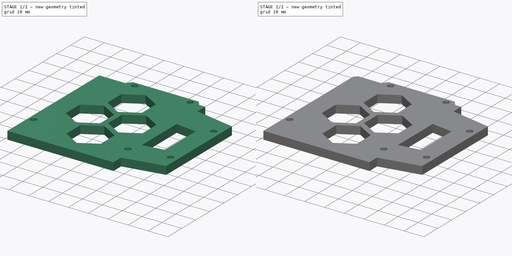
[diagram: build sequence overview — one tinted view per stage of 2, left to right]
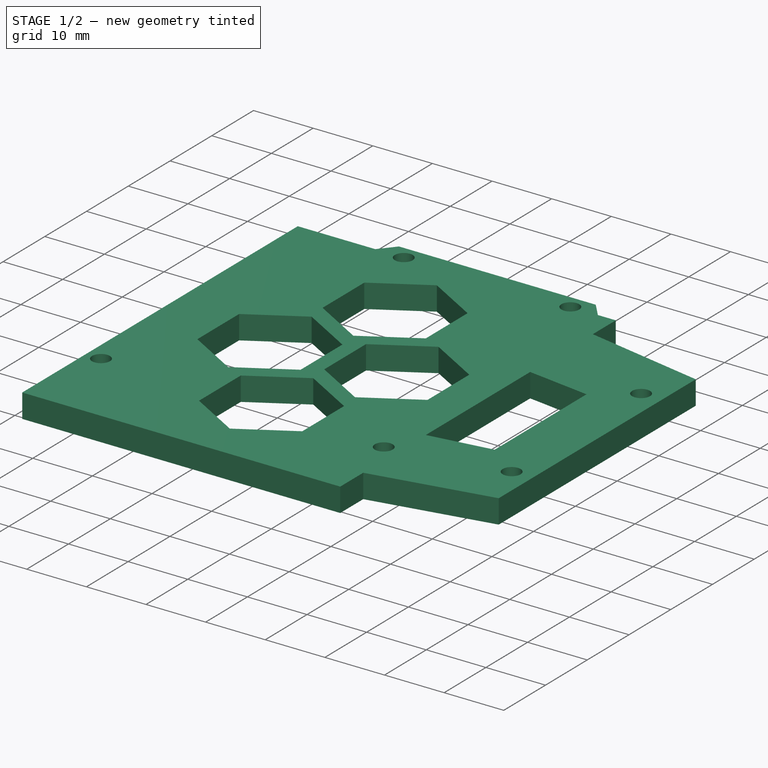
[diagram: stage 1 of 2 — iso view after this stage's code; geometry added in this stage tinted green]
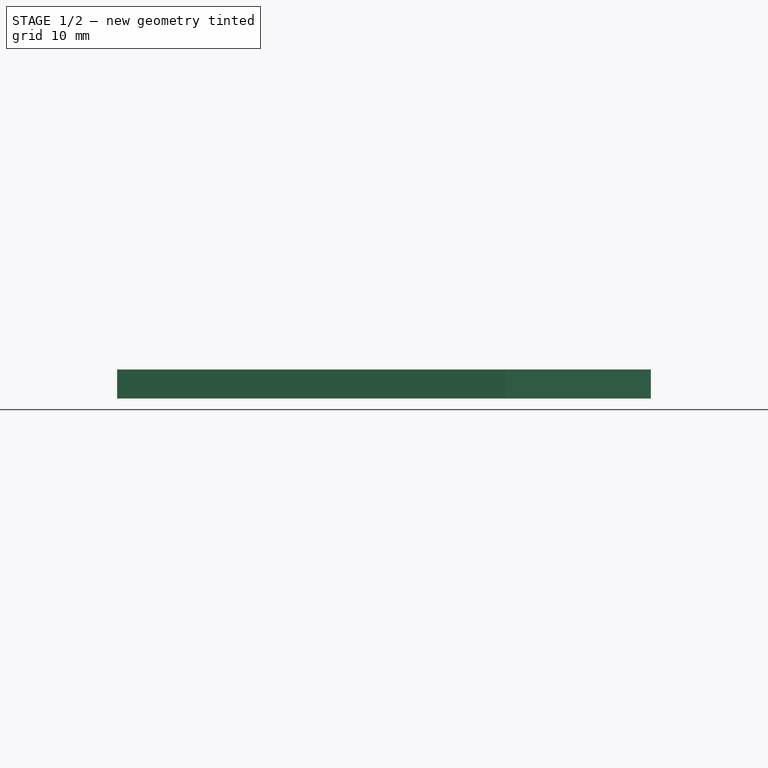
[diagram: stage 1 of 2 — front view after this stage's code; geometry added in this stage tinted green]
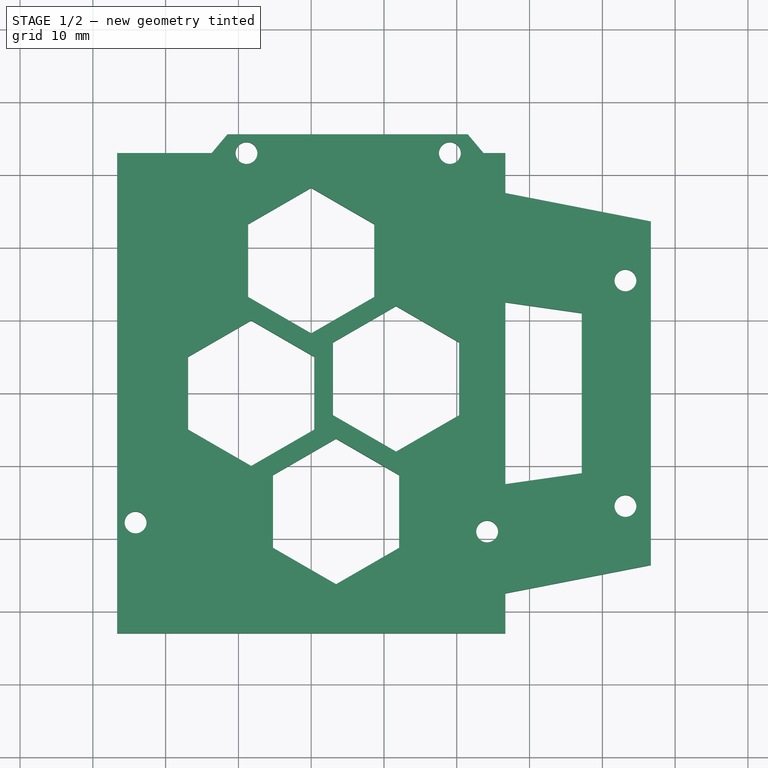
[diagram: stage 1 of 2 — top view after this stage's code; geometry added in this stage tinted green]
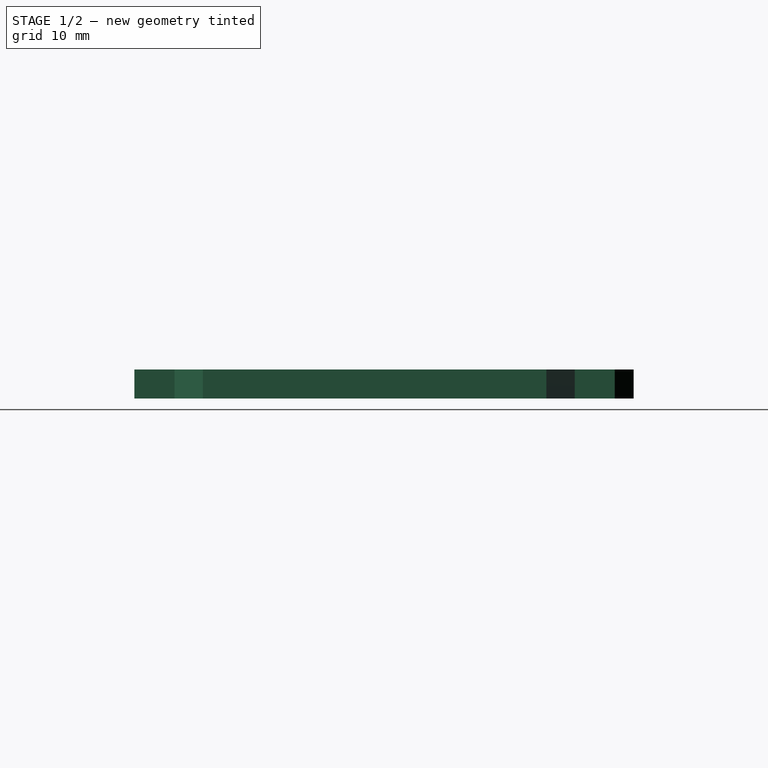
[diagram: stage 1 of 2 — right view after this stage's code; geometry added in this stage tinted green]
FCSTD DOCUMENT  (FreeCAD 0.19R24291 (Git))
Label: plotter-arduino-mount
License: All rights reserved
LicenseURL: http://en.wikipedia.org/wiki/All_rights_reserved
objects: Sketcher::SketchObject×1, PartDesign::Pad×1, PartDesign::Chamfer×1, PartDesign::Body×1, App::Part×1
note: 6 computed .brp shape members not serialized (recipe doc carries the construction recipe); baked Part::Feature solids carry a one-line shape summary decoded from their .brp

FEATURE [Sketcher::SketchObject] Sketch
  FullyConstrained = true
  MapMode = 5
  Support = -> [XY_Plane001]
  expr: Constraints[16] = 42.4 + 2.4 * 2
  sketch-geometry (50):
    g0: LineSegment StartX=-11.5 StartY=35.58 StartZ=0 EndX=21.5 EndY=35.58 EndZ=0
    g1: LineSegment StartX=21.5 StartY=35.58 StartZ=0 EndX=23.67 EndY=33 EndZ=0
    g2: LineSegment StartX=26.67 StartY=27.5 StartZ=0 EndX=46.67 EndY=23.6 EndZ=0
    g3: LineSegment StartX=46.67 StartY=23.6 StartZ=0 EndX=46.67 EndY=-23.6 EndZ=0
    g4: LineSegment StartX=46.67 StartY=-23.6 StartZ=0 EndX=26.67 EndY=-27.5 EndZ=0
    g5: LineSegment StartX=26.67 StartY=-27.5 StartZ=0 EndX=26.67 EndY=-33 EndZ=0
    g6: LineSegment StartX=26.67 StartY=-33 StartZ=0 EndX=-26.67 EndY=-33 EndZ=0
    g7: LineSegment StartX=-26.67 StartY=-33 StartZ=0 EndX=-26.67 EndY=33 EndZ=0
    g8: LineSegment StartX=-26.67 StartY=33 StartZ=0 EndX=-13.67 EndY=33 EndZ=0
    g9: LineSegment StartX=-13.67 StartY=33 StartZ=0 EndX=-11.5 EndY=35.58 EndZ=0
    g10: Circle CenterX=43.17 CenterY=15.5 CenterZ=0 NormalX=0 NormalY=0 NormalZ=1 AngleXU=0 Radius=1.5
    g11: Circle CenterX=43.17 CenterY=-15.5 CenterZ=0 NormalX=0 NormalY=0 NormalZ=1 AngleXU=0 Radius=1.5
    g12: Circle CenterX=19.05 CenterY=33 CenterZ=0 NormalX=0 NormalY=0 NormalZ=1 AngleXU=0 Radius=1.5
    g13: Circle CenterX=-8.89 CenterY=33 CenterZ=0 NormalX=0 NormalY=0 NormalZ=1 AngleXU=0 Radius=1.5
    g14: Circle CenterX=-24.13 CenterY=-17.76 CenterZ=0 NormalX=0 NormalY=0 NormalZ=1 AngleXU=0 Radius=1.5
    g15: Circle CenterX=24.17 CenterY=-19 CenterZ=0 NormalX=0 NormalY=0 NormalZ=1 AngleXU=0 Radius=1.5
    g16: LineSegment StartX=23.67 StartY=33 StartZ=0 EndX=26.67 EndY=33 EndZ=0
    g17: LineSegment StartX=26.67 StartY=33 StartZ=0 EndX=26.67 EndY=27.5 EndZ=0
    g18: LineSegment StartX=8.66025 StartY=13.2227 StartZ=0 EndX=8.66025 EndY=23.2227 EndZ=0
    g19: LineSegment StartX=8.66025 StartY=23.2227 StartZ=0 EndX=1.8e-15 EndY=28.2227 EndZ=0
    g20: LineSegment StartX=1.8e-15 StartY=28.2227 StartZ=0 EndX=-8.66025 EndY=23.2227 EndZ=0
    g21: LineSegment StartX=-8.66025 StartY=23.2227 StartZ=0 EndX=-8.66025 EndY=13.2227 EndZ=0
    g22: LineSegment StartX=-8.66025 StartY=13.2227 StartZ=0 EndX=0 EndY=8.22271 EndZ=0
    g23: LineSegment StartX=0 StartY=8.22271 StartZ=0 EndX=8.66025 EndY=13.2227 EndZ=0
    g24: Circle CenterX=1.5e-15 CenterY=18.2227 CenterZ=0 NormalX=0 NormalY=0 NormalZ=1 AngleXU=0 Radius=10
    g25: LineSegment StartX=20.3205 StartY=-3.02655 StartZ=0 EndX=20.3205 EndY=6.97345 EndZ=0
    g26: LineSegment StartX=20.3205 StartY=6.97345 StartZ=0 EndX=11.6603 EndY=11.9734 EndZ=0
    g27: LineSegment StartX=11.6603 StartY=11.9734 StartZ=0 EndX=3 EndY=6.97345 EndZ=0
    g28: LineSegment StartX=3 StartY=6.97345 StartZ=0 EndX=3 EndY=-3.02655 EndZ=0
    g29: LineSegment StartX=3 StartY=-3.02655 StartZ=0 EndX=11.6603 EndY=-8.02655 EndZ=0
    g30: LineSegment StartX=11.6603 StartY=-8.02655 StartZ=0 EndX=20.3205 EndY=-3.02655 EndZ=0
    g31: Circle CenterX=11.6603 CenterY=1.97345 CenterZ=0 NormalX=0 NormalY=0 NormalZ=1 AngleXU=0 Radius=10
    g32: LineSegment StartX=0.418108 StartY=-5 StartZ=0 EndX=0.418108 EndY=5 EndZ=0
    g33: LineSegment StartX=0.418108 StartY=5 StartZ=0 EndX=-8.24215 EndY=10 EndZ=0
    g34: LineSegment StartX=-8.24215 StartY=10 StartZ=0 EndX=-16.9024 EndY=5 EndZ=0
    g35: LineSegment StartX=-16.9024 StartY=5 StartZ=0 EndX=-16.9024 EndY=-5 EndZ=0
    g36: LineSegment StartX=-16.9024 StartY=-5 StartZ=0 EndX=-8.24215 EndY=-10 EndZ=0
    g37: LineSegment StartX=-8.24215 StartY=-10 StartZ=0 EndX=0.418108 EndY=-5 EndZ=0
    g38: Circle CenterX=-8.24215 CenterY=0 CenterZ=0 NormalX=0 NormalY=0 NormalZ=1 AngleXU=0 Radius=10
    g39: LineSegment StartX=12.0784 StartY=-21.2493 StartZ=0 EndX=12.0784 EndY=-11.2493 EndZ=0
    g40: LineSegment StartX=12.0784 StartY=-11.2493 StartZ=0 EndX=3.41811 EndY=-6.24926 EndZ=0
    g41: LineSegment StartX=3.41811 StartY=-6.24926 StartZ=0 EndX=-5.24215 EndY=-11.2493 EndZ=0
    g42: LineSegment StartX=-5.24215 StartY=-11.2493 StartZ=0 EndX=-5.24215 EndY=-21.2493 EndZ=0
    g43: LineSegment StartX=-5.24215 StartY=-21.2493 StartZ=0 EndX=3.41811 EndY=-26.2493 EndZ=0
    g44: LineSegment StartX=3.41811 StartY=-26.2493 StartZ=0 EndX=12.0784 EndY=-21.2493 EndZ=0
    g45: Circle CenterX=3.41811 CenterY=-16.2493 CenterZ=0 NormalX=0 NormalY=0 NormalZ=1 AngleXU=0 Radius=10
    g46: LineSegment StartX=26.67 StartY=12.5 StartZ=0 EndX=26.67 EndY=-12.5 EndZ=0
    g47: LineSegment StartX=26.67 StartY=-12.5 StartZ=0 EndX=37.17 EndY=-11 EndZ=0
    g48: LineSegment StartX=37.17 StartY=-11 StartZ=0 EndX=37.17 EndY=11 EndZ=0
    g49: LineSegment StartX=37.17 StartY=11 StartZ=0 EndX=26.67 EndY=12.5 EndZ=0
  constraints (127):
    c: Horizontal(g0)
    c: Coincident(g0,g1)
    c: Coincident(g2,g3)
    c: Coincident(g3,g4)
    c: Coincident(g4,g5)
    c: Vertical(g5)
    c: Coincident(g5,g6)
    c: Coincident(g6,g7)
    c: Horizontal(g8)
    c: Coincident(g8,g9)
    c: Coincident(g9,g0)
    c: Diameter(g10) = 3
    c: Equal(g10,g11)
    c: Symmetric(g10,g11,g-1)
    c: DistanceY(g11,g10) = 31
    c: Symmetric(g2,g3,g-1)
    c: DistanceY(g3,g3) = 47.2
    c: DistanceX(g6,g6) = 53.34
    c: Symmetric(g6,g5,g-2)
    c: Coincident(g7,g8)
    c: DistanceY(g7,g7) = 66
    c: Symmetric(g7,g6,g-1)
    c: DistanceX(g8,g8) = 13
    c: DistanceX(g0,g0) = 33
    c: Coincident(g1,g16)
    c: Horizontal(g16)
    c: Coincident(g16,g17)
    c: Coincident(g17,g2)
    c: Vertical(g17)
    c: DistanceX(g16,g16) = 3
    c: DistanceY(g6,g0) = 68.58
    c: Equal(g9,g1)
    c: Horizontal(g1,g8)
    c: DistanceX(g5,g3) = 20
    c: DistanceX(g11,g3) = 3.5
    c: Symmetric(g2,g4,g-1)
    c: DistanceY(g4,g2) = 55
    c: Diameter(g13) = 3
    c: Equal(g13,g12)
    c: Equal(g13,g15)
    c: Equal(g13,g14)
    c: DistanceY(g6,g14) = 15.24
    c: DistanceX(g14,g5) = 50.8
    c: DistanceY(g6,g13) = 66
    c: Horizontal(g12,g13)
    c: DistanceX(g13,g16) = 35.56
    c: DistanceX(g12,g16) = 7.62
    c: DistanceY(g5,g15) = 14
    c: DistanceX(g15,g5) = 2.5
    c: Coincident(g18,g19)
    c: Coincident(g19,g20)
    c: Coincident(g20,g21)
    c: Coincident(g21,g22)
    c: Coincident(g22,g23)
    c: Coincident(g23,g18)
    c: Equal(g18, g19-g23) x5
    c: PointOnObject(g18,g24)
    c: PointOnObject(g19,g24)
    c: PointOnObject(g20,g24)
    c: PointOnObject(g21,g24)
    c: PointOnObject(g22,g24)
    c: PointOnObject(g23,g24)
    c: Vertical(g18)
    c: Distance(g18) = 10
    c: Coincident(g25,g26)
    c: Coincident(g26,g27)
    c: Coincident(g27,g28)
    c: Coincident(g28,g29)
    c: Coincident(g29,g30)
    c: Coincident(g30,g25)
    c: Equal(g25, g26-g30) x5
    c: PointOnObject(g25,g31)
    c: PointOnObject(g26,g31)
    c: PointOnObject(g27,g31)
    c: PointOnObject(g28,g31)
    c: PointOnObject(g29,g31)
    c: PointOnObject(g30,g31)
    c: Vertical(g25)
    c: Equal(g18,g25) = 10
    c: Coincident(g32,g33)
    c: Coincident(g33,g34)
    c: Coincident(g34,g35)
    c: Coincident(g35,g36)
    c: Coincident(g36,g37)
    c: Coincident(g37,g32)
    c: Equal(g32, g33-g37) x5
    c: PointOnObject(g32,g38)
    c: PointOnObject(g33,g38)
    c: PointOnObject(g34,g38)
    c: PointOnObject(g35,g38)
    c: PointOnObject(g36,g38)
    c: PointOnObject(g37,g38)
    c: Vertical(g32)
    c: Equal(g18,g32) = 10
    c: Coincident(g39,g40)
    c: Coincident(g40,g41)
    c: Coincident(g41,g42)
    c: Coincident(g42,g43)
    c: Coincident(g43,g44)
    c: Coincident(g44,g39)
    c: Equal(g39, g40-g44) x5
    c: PointOnObject(g39,g45)
    c: PointOnObject(g40,g45)
    c: PointOnObject(g41,g45)
    c: PointOnObject(g42,g45)
    c: PointOnObject(g43,g45)
    c: PointOnObject(g44,g45)
    c: Vertical(g39)
    c: Equal(g18,g39) = 10
    c: Tangent(g24,g31)
    c: Tangent(g24,g38)
    c: Tangent(g38,g31)
    c: Tangent(g31,g45)
    c: Tangent(g38,g45)
    c: DistanceX(g22,g27) = 3
    c: Vertical(g22,g-1)
    c: Horizontal(g-1,g38)
    c: Coincident(g46,g47)
    c: Coincident(g47,g48)
    c: Coincident(g48,g49)
    c: Coincident(g49,g46)
    c: Symmetric(g46,g46,g-1)
    c: Symmetric(g48,g47,g-1)
    c: DistanceY(g46,g46) = 25
    c: DistanceY(g48,g48) = 22
    c: DistanceX(g48,g10) = 6
    c: Vertical(g2,g46)
FEATURE [PartDesign::Pad] Pad
  Direction = (1,1,1)
  Length = 4
  Length2 = 100
  Profile = -> Sketch
  Type = 0
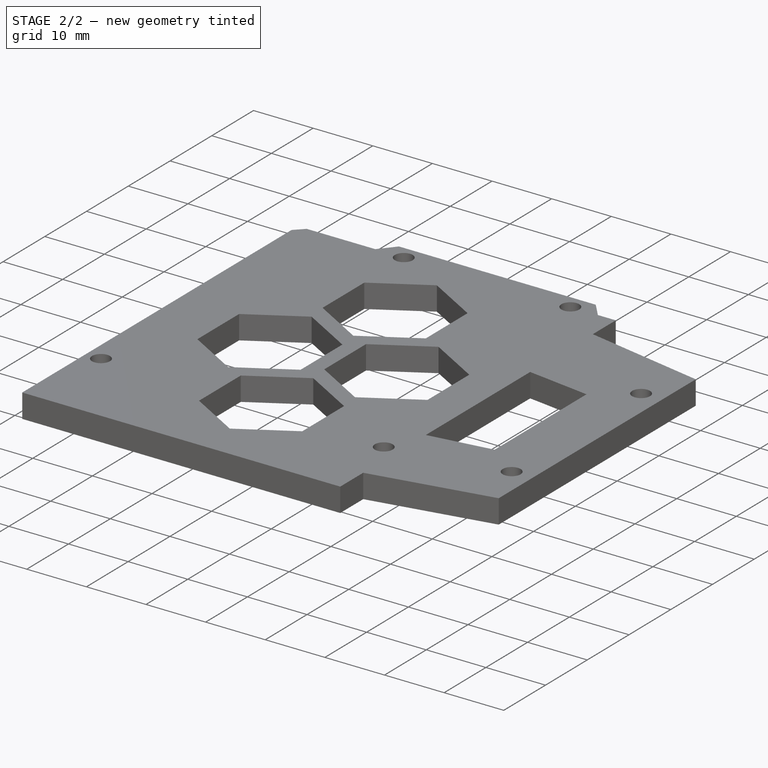
[diagram: stage 2 of 2 — iso view after this stage's code; geometry added in this stage tinted green]
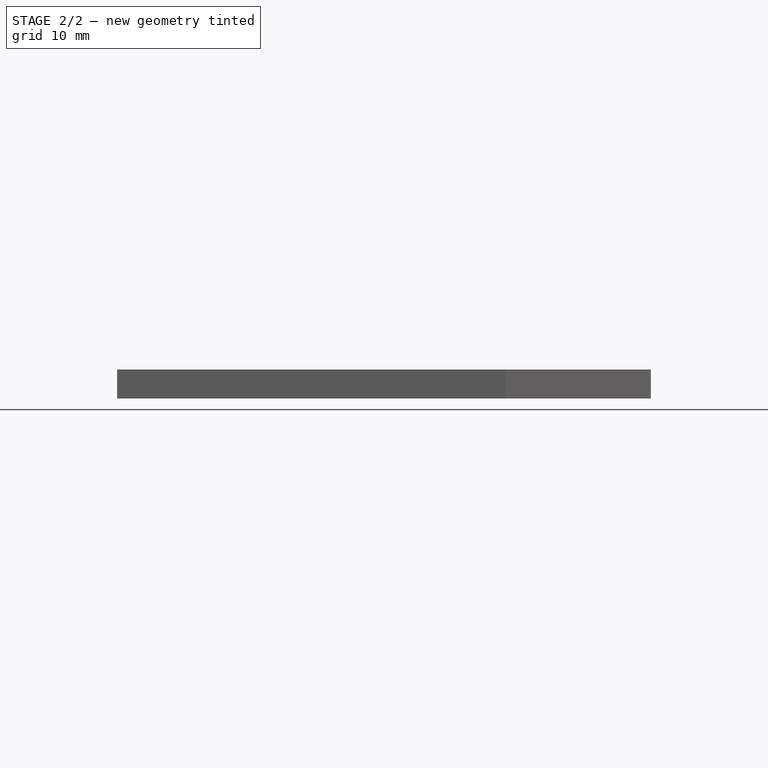
[diagram: stage 2 of 2 — front view after this stage's code; geometry added in this stage tinted green]
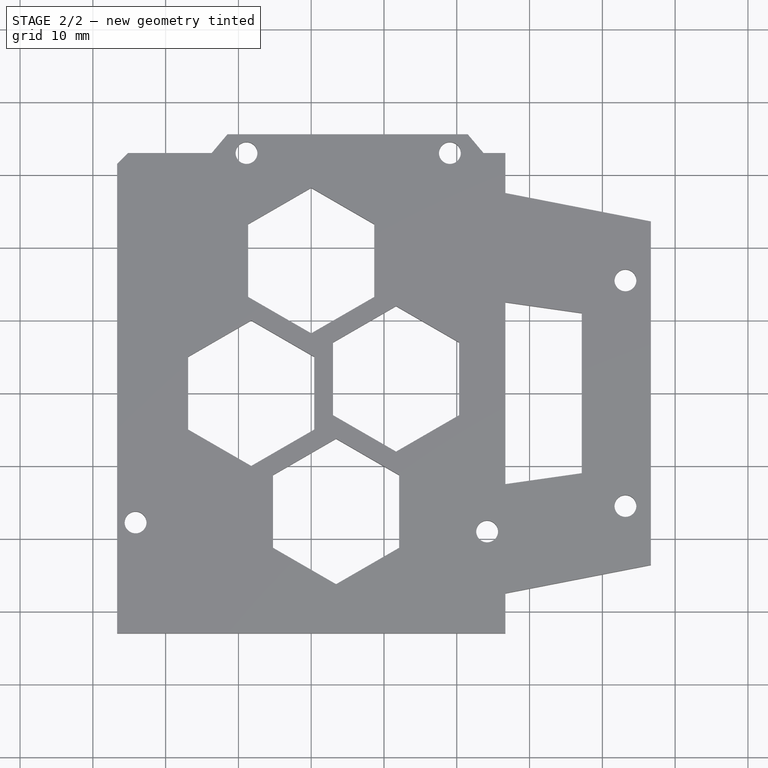
[diagram: stage 2 of 2 — top view after this stage's code; geometry added in this stage tinted green]
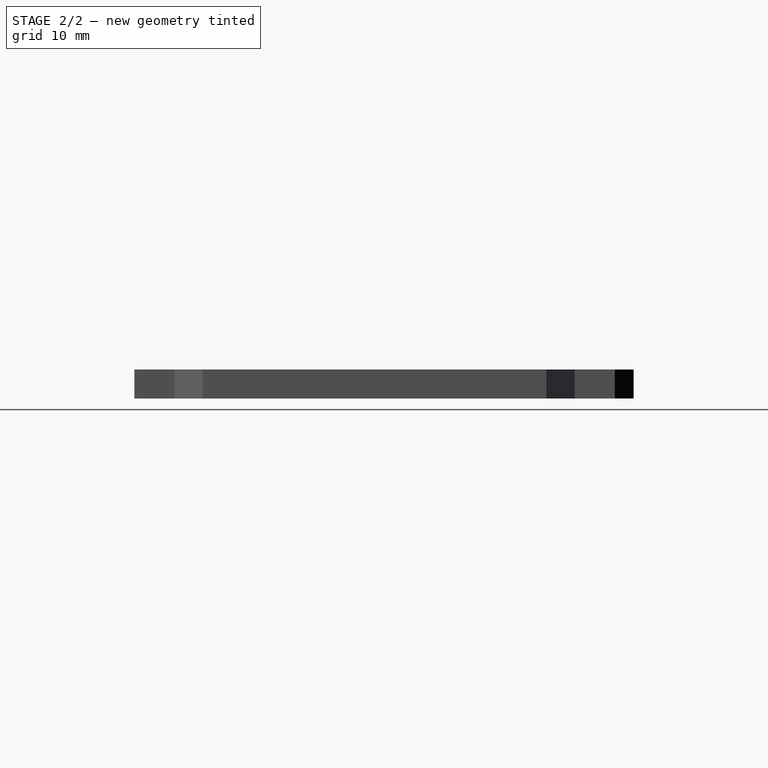
[diagram: stage 2 of 2 — right view after this stage's code; geometry added in this stage tinted green]
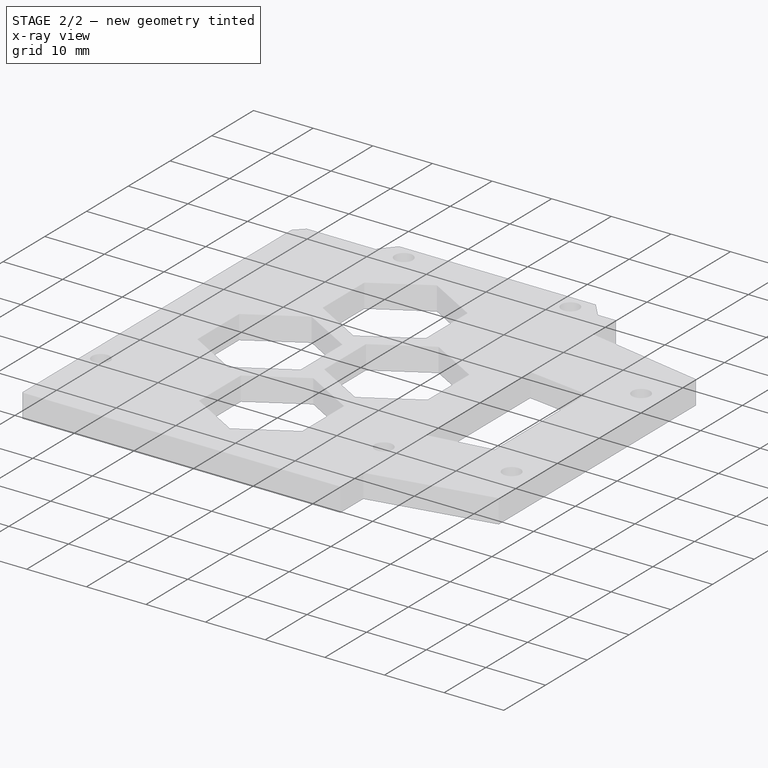
[diagram: stage 2 of 2 — x-ray composite at the iso view; earlier geometry ghosted, this stage's added geometry solid]
FEATURE [PartDesign::Chamfer] Chamfer
  Angle = 45
  Base = -> Pad [Edge29]
  BaseFeature = -> Pad
  ChamferType = 0
  FlipDirection = false
  Size = 1.5
  Size2 = 1
  SupportTransform = false
FEATURE [PartDesign::Body] Body
  Group = -> [Sketch,Pad,Chamfer]
  Origin = -> Origin001
  Tip = -> Chamfer
FEATURE [App::Part] Part  label="ArduinoMount"
  Group = -> [Body]
  Origin = -> Origin
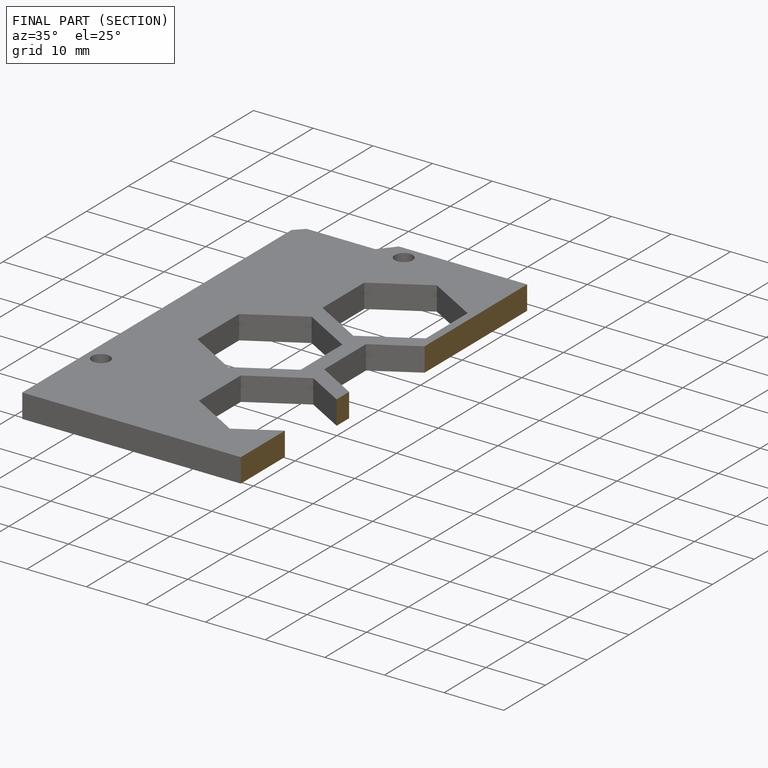
[diagram: finished part — half-section view (interior)]
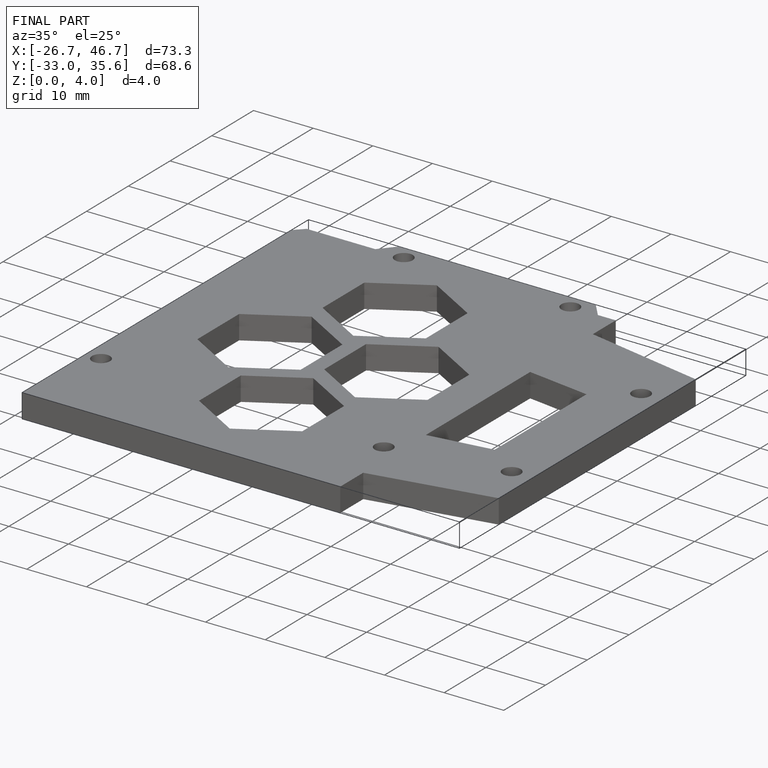
[diagram: finished part — iso view with bounding-box wireframe]
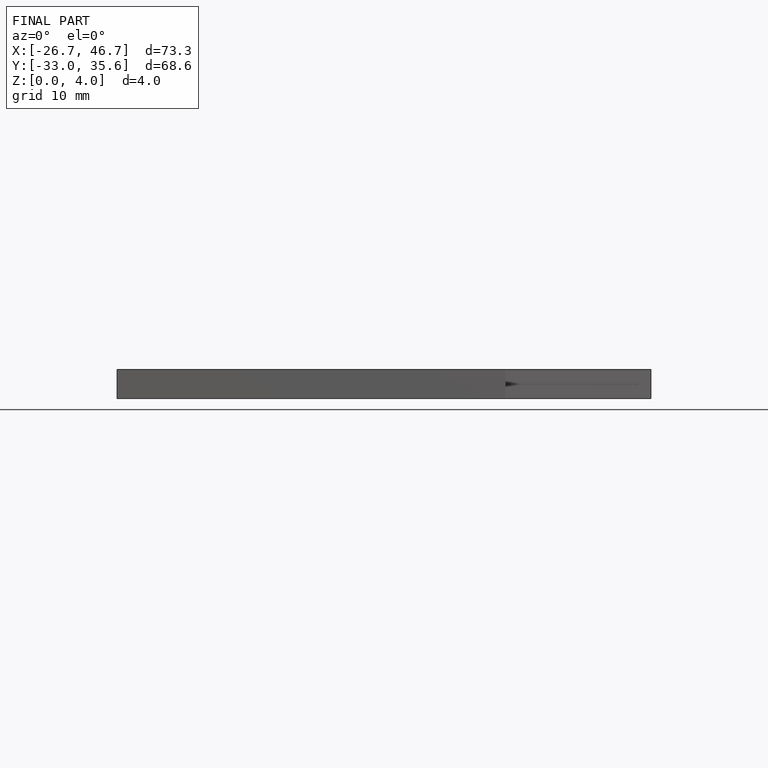
[diagram: finished part — front view with bounding-box wireframe]
